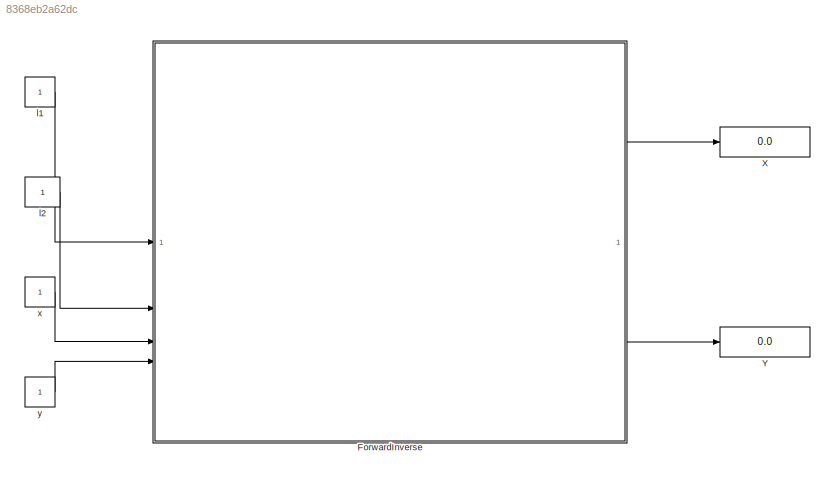
MODEL slx_8368eb2a62dc
KIND model
CONFIG AbsTol = auto
CONFIG EnableMultiTasking = off
CONFIG FixedStep = auto
CONFIG MaxStep = auto
CONFIG MinStep = auto
CONFIG RelTol = 1e-3
CONFIG SampleTimeConstraint = Unconstrained
CONFIG SolverName = VariableStepAuto
CONFIG StartTime = 0.0
CONFIG StopTime = 10.0
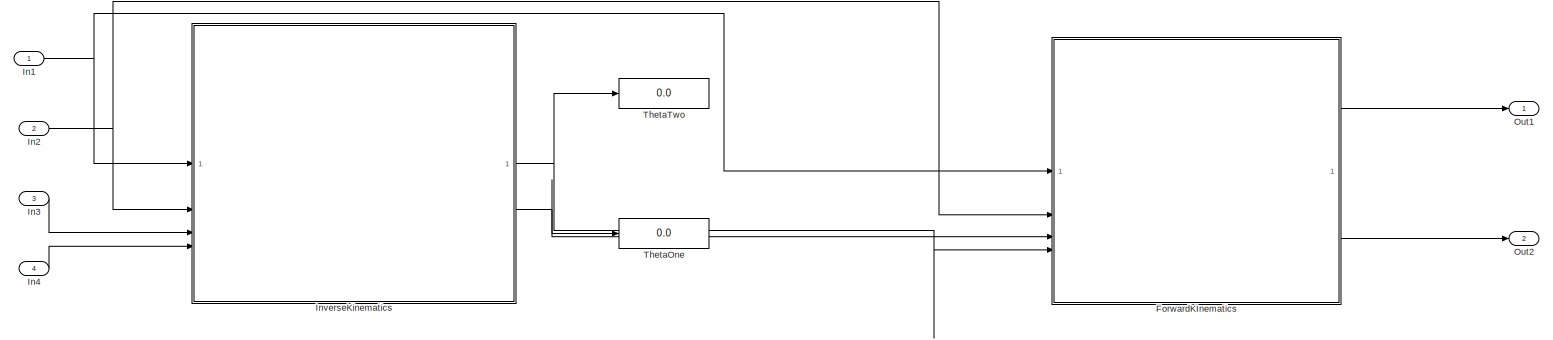
[diagram: ForwardInverse - part 1/1, most of the canvas]
BLOCK [SubSystem] ForwardInverse
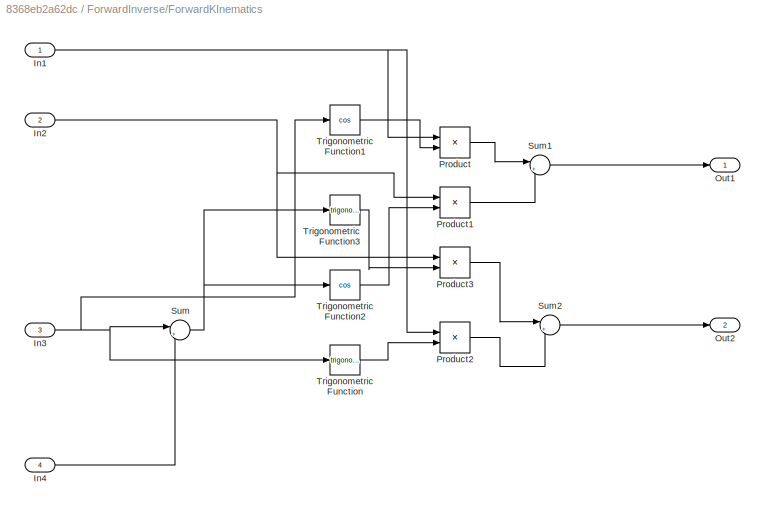
BLOCK [SubSystem] ForwardInverse/ForwardKInematics
BLOCK [Inport] ForwardInverse/ForwardKInematics/In1
BLOCK [Inport] ForwardInverse/ForwardKInematics/In2
  Port = 2
BLOCK [Inport] ForwardInverse/ForwardKInematics/In3
  Port = 3
BLOCK [Inport] ForwardInverse/ForwardKInematics/In4
  Port = 4
BLOCK [Outport] ForwardInverse/ForwardKInematics/Out1
BLOCK [Outport] ForwardInverse/ForwardKInematics/Out2
  Port = 2
BLOCK [Product] ForwardInverse/ForwardKInematics/Product
BLOCK [Product] ForwardInverse/ForwardKInematics/Product1
BLOCK [Product] ForwardInverse/ForwardKInematics/Product2
BLOCK [Product] ForwardInverse/ForwardKInematics/Product3
BLOCK [Sum] ForwardInverse/ForwardKInematics/Sum
  Inputs = |++
BLOCK [Sum] ForwardInverse/ForwardKInematics/Sum1
  Inputs = |++
BLOCK [Sum] ForwardInverse/ForwardKInematics/Sum2
  Inputs = |++
BLOCK [Trigonometry] ForwardInverse/ForwardKInematics/Trigonometric Function
BLOCK [Trigonometry] ForwardInverse/ForwardKInematics/Trigonometric Function1
  Operator = cos
BLOCK [Trigonometry] ForwardInverse/ForwardKInematics/Trigonometric Function2
  Operator = cos
BLOCK [Trigonometry] ForwardInverse/ForwardKInematics/Trigonometric Function3
BLOCK [Inport] ForwardInverse/In1
BLOCK [Inport] ForwardInverse/In2
  Port = 2
BLOCK [Inport] ForwardInverse/In3
  Port = 3
BLOCK [Inport] ForwardInverse/In4
  Port = 4
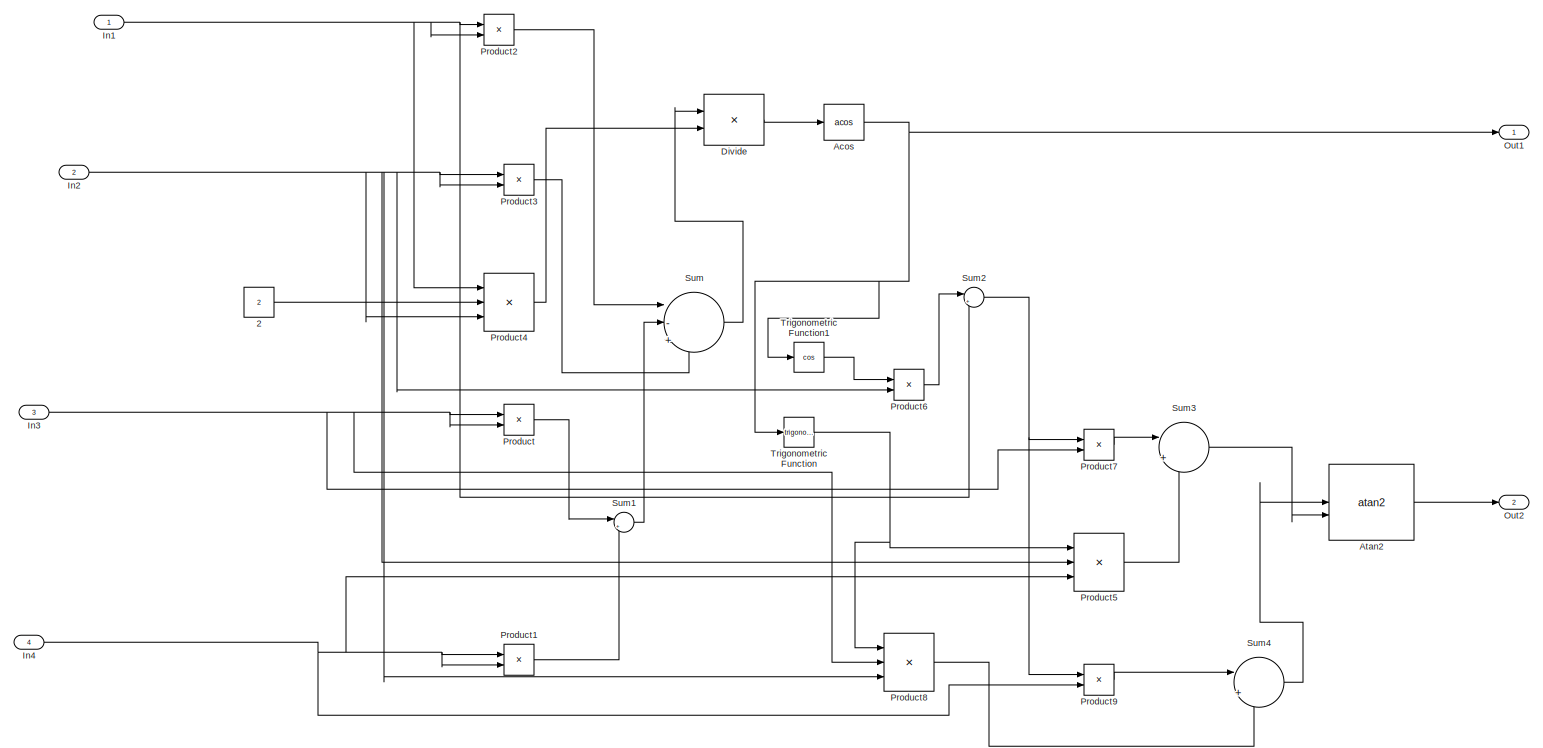
[diagram: ForwardInverse/InverseKinematics - part 1/1, most of the canvas]
BLOCK [SubSystem] ForwardInverse/InverseKinematics
BLOCK [Constant] ForwardInverse/InverseKinematics/2
  Value = 2
BLOCK [Trigonometry] ForwardInverse/InverseKinematics/Acos
  Operator = acos
BLOCK [Trigonometry] ForwardInverse/InverseKinematics/Atan2
  Operator = atan2
BLOCK [Product] ForwardInverse/InverseKinematics/Divide
  Inputs = */
BLOCK [Inport] ForwardInverse/InverseKinematics/In1
BLOCK [Inport] ForwardInverse/InverseKinematics/In2
  Port = 2
BLOCK [Inport] ForwardInverse/InverseKinematics/In3
  Port = 3
BLOCK [Inport] ForwardInverse/InverseKinematics/In4
  Port = 4
BLOCK [Outport] ForwardInverse/InverseKinematics/Out1
BLOCK [Outport] ForwardInverse/InverseKinematics/Out2
  Port = 2
BLOCK [Product] ForwardInverse/InverseKinematics/Product
BLOCK [Product] ForwardInverse/InverseKinematics/Product1
BLOCK [Product] ForwardInverse/InverseKinematics/Product2
BLOCK [Product] ForwardInverse/InverseKinematics/Product3
BLOCK [Product] ForwardInverse/InverseKinematics/Product4
  Inputs = 3
BLOCK [Product] ForwardInverse/InverseKinematics/Product5
  Inputs = 3
BLOCK [Product] ForwardInverse/InverseKinematics/Product6
BLOCK [Product] ForwardInverse/InverseKinematics/Product7
BLOCK [Product] ForwardInverse/InverseKinematics/Product8
  Inputs = 3
BLOCK [Product] ForwardInverse/InverseKinematics/Product9
BLOCK [Sum] ForwardInverse/InverseKinematics/Sum
  Inputs = |-+-
BLOCK [Sum] ForwardInverse/InverseKinematics/Sum1
  Inputs = |++
BLOCK [Sum] ForwardInverse/InverseKinematics/Sum2
  Inputs = |++
BLOCK [Sum] ForwardInverse/InverseKinematics/Sum3
  Inputs = |++
BLOCK [Sum] ForwardInverse/InverseKinematics/Sum4
  Inputs = |+-
BLOCK [Trigonometry] ForwardInverse/InverseKinematics/Trigonometric Function
BLOCK [Trigonometry] ForwardInverse/InverseKinematics/Trigonometric Function1
  Operator = cos
BLOCK [Outport] ForwardInverse/Out1
BLOCK [Outport] ForwardInverse/Out2
  Port = 2
BLOCK [Display] ForwardInverse/ThetaOne
  Decimation = 1
BLOCK [Display] ForwardInverse/ThetaTwo
  Decimation = 1
BLOCK [Display] X
  Decimation = 1
BLOCK [Display] Y
  Decimation = 1
BLOCK [Constant] l1
BLOCK [Constant] l2
BLOCK [Constant] x
BLOCK [Constant] y
NET ForwardInverse/ForwardKInematics/In1:1 -> ForwardInverse/ForwardKInematics/Product2:1, ForwardInverse/ForwardKInematics/Product:1
NET ForwardInverse/ForwardKInematics/In2:1 -> ForwardInverse/ForwardKInematics/Product1:1, ForwardInverse/ForwardKInematics/Product3:1
NET ForwardInverse/ForwardKInematics/In3:1 -> ForwardInverse/ForwardKInematics/Sum:1, ForwardInverse/ForwardKInematics/Trigonometric Function1:1, ForwardInverse/ForwardKInematics/Trigonometric Function:1
LINE ForwardInverse/ForwardKInematics/In4:1 -> ForwardInverse/ForwardKInematics/Sum:2
LINE ForwardInverse/ForwardKInematics/Product1:1 -> ForwardInverse/ForwardKInematics/Sum1:2
LINE ForwardInverse/ForwardKInematics/Product2:1 -> ForwardInverse/ForwardKInematics/Sum2:2
LINE ForwardInverse/ForwardKInematics/Product3:1 -> ForwardInverse/ForwardKInematics/Sum2:1
LINE ForwardInverse/ForwardKInematics/Product:1 -> ForwardInverse/ForwardKInematics/Sum1:1
LINE ForwardInverse/ForwardKInematics/Sum1:1 -> ForwardInverse/ForwardKInematics/Out1:1
LINE ForwardInverse/ForwardKInematics/Sum2:1 -> ForwardInverse/ForwardKInematics/Out2:1
NET ForwardInverse/ForwardKInematics/Sum:1 -> ForwardInverse/ForwardKInematics/Trigonometric Function2:1, ForwardInverse/ForwardKInematics/Trigonometric Function3:1
LINE ForwardInverse/ForwardKInematics/Trigonometric Function1:1 -> ForwardInverse/ForwardKInematics/Product:2
LINE ForwardInverse/ForwardKInematics/Trigonometric Function2:1 -> ForwardInverse/ForwardKInematics/Product1:2
LINE ForwardInverse/ForwardKInematics/Trigonometric Function3:1 -> ForwardInverse/ForwardKInematics/Product3:2
LINE ForwardInverse/ForwardKInematics/Trigonometric Function:1 -> ForwardInverse/ForwardKInematics/Product2:2
LINE ForwardInverse/ForwardKInematics:1 -> ForwardInverse/Out1:1
LINE ForwardInverse/ForwardKInematics:2 -> ForwardInverse/Out2:1
NET ForwardInverse/In1:1 -> ForwardInverse/ForwardKInematics:1, ForwardInverse/InverseKinematics:1
NET ForwardInverse/In2:1 -> ForwardInverse/ForwardKInematics:2, ForwardInverse/InverseKinematics:2
LINE ForwardInverse/In3:1 -> ForwardInverse/InverseKinematics:3
LINE ForwardInverse/In4:1 -> ForwardInverse/InverseKinematics:4
LINE ForwardInverse/InverseKinematics/2:1 -> ForwardInverse/InverseKinematics/Product4:2
NET ForwardInverse/InverseKinematics/Acos:1 -> ForwardInverse/InverseKinematics/Out1:1, ForwardInverse/InverseKinematics/Trigonometric Function1:1, ForwardInverse/InverseKinematics/Trigonometric Function:1
LINE ForwardInverse/InverseKinematics/Atan2:1 -> ForwardInverse/InverseKinematics/Out2:1
LINE ForwardInverse/InverseKinematics/Divide:1 -> ForwardInverse/InverseKinematics/Acos:1
NET ForwardInverse/InverseKinematics/In1:1 -> ForwardInverse/InverseKinematics/Product2:1, ForwardInverse/InverseKinematics/Product2:2, ForwardInverse/InverseKinematics/Product4:1, ForwardInverse/InverseKinematics/Sum2:2
NET ForwardInverse/InverseKinematics/In2:1 -> ForwardInverse/InverseKinematics/Product3:1, ForwardInverse/InverseKinematics/Product3:2, ForwardInverse/InverseKinematics/Product4:3, ForwardInverse/InverseKinematics/Product5:2, ForwardInverse/InverseKinematics/Product6:2, ForwardInverse/InverseKinematics/Product8:3
NET ForwardInverse/InverseKinematics/In3:1 -> ForwardInverse/InverseKinematics/Product7:2, ForwardInverse/InverseKinematics/Product8:2, ForwardInverse/InverseKinematics/Product:1, ForwardInverse/InverseKinematics/Product:2
NET ForwardInverse/InverseKinematics/In4:1 -> ForwardInverse/InverseKinematics/Product1:1, ForwardInverse/InverseKinematics/Product1:2, ForwardInverse/InverseKinematics/Product5:3, ForwardInverse/InverseKinematics/Product9:2
LINE ForwardInverse/InverseKinematics/Product1:1 -> ForwardInverse/InverseKinematics/Sum1:2
LINE ForwardInverse/InverseKinematics/Product2:1 -> ForwardInverse/InverseKinematics/Sum:1
LINE ForwardInverse/InverseKinematics/Product3:1 -> ForwardInverse/InverseKinematics/Sum:3
LINE ForwardInverse/InverseKinematics/Product4:1 -> ForwardInverse/InverseKinematics/Divide:2
LINE ForwardInverse/InverseKinematics/Product5:1 -> ForwardInverse/InverseKinematics/Sum3:2
LINE ForwardInverse/InverseKinematics/Product6:1 -> ForwardInverse/InverseKinematics/Sum2:1
LINE ForwardInverse/InverseKinematics/Product7:1 -> ForwardInverse/InverseKinematics/Sum3:1
LINE ForwardInverse/InverseKinematics/Product8:1 -> ForwardInverse/InverseKinematics/Sum4:2
LINE ForwardInverse/InverseKinematics/Product9:1 -> ForwardInverse/InverseKinematics/Sum4:1
LINE ForwardInverse/InverseKinematics/Product:1 -> ForwardInverse/InverseKinematics/Sum1:1
LINE ForwardInverse/InverseKinematics/Sum1:1 -> ForwardInverse/InverseKinematics/Sum:2
NET ForwardInverse/InverseKinematics/Sum2:1 -> ForwardInverse/InverseKinematics/Product7:1, ForwardInverse/InverseKinematics/Product9:1
LINE ForwardInverse/InverseKinematics/Sum3:1 -> ForwardInverse/InverseKinematics/Atan2:2
LINE ForwardInverse/InverseKinematics/Sum4:1 -> ForwardInverse/InverseKinematics/Atan2:1
LINE ForwardInverse/InverseKinematics/Sum:1 -> ForwardInverse/InverseKinematics/Divide:1
LINE ForwardInverse/InverseKinematics/Trigonometric Function1:1 -> ForwardInverse/InverseKinematics/Product6:1
NET ForwardInverse/InverseKinematics/Trigonometric Function:1 -> ForwardInverse/InverseKinematics/Product5:1, ForwardInverse/InverseKinematics/Product8:1
NET ForwardInverse/InverseKinematics:1 -> ForwardInverse/ForwardKInematics:4, ForwardInverse/ThetaTwo:1
NET ForwardInverse/InverseKinematics:2 -> ForwardInverse/ForwardKInematics:3, ForwardInverse/ThetaOne:1
LINE ForwardInverse:1 -> X:1
LINE ForwardInverse:2 -> Y:1
LINE l1:1 -> ForwardInverse:1
LINE l2:1 -> ForwardInverse:2
LINE x:1 -> ForwardInverse:3
LINE y:1 -> ForwardInverse:4
note: NET lines group one-source signal fan-out (src -> all destinations, sorted); 1:1 wires keep LINE
